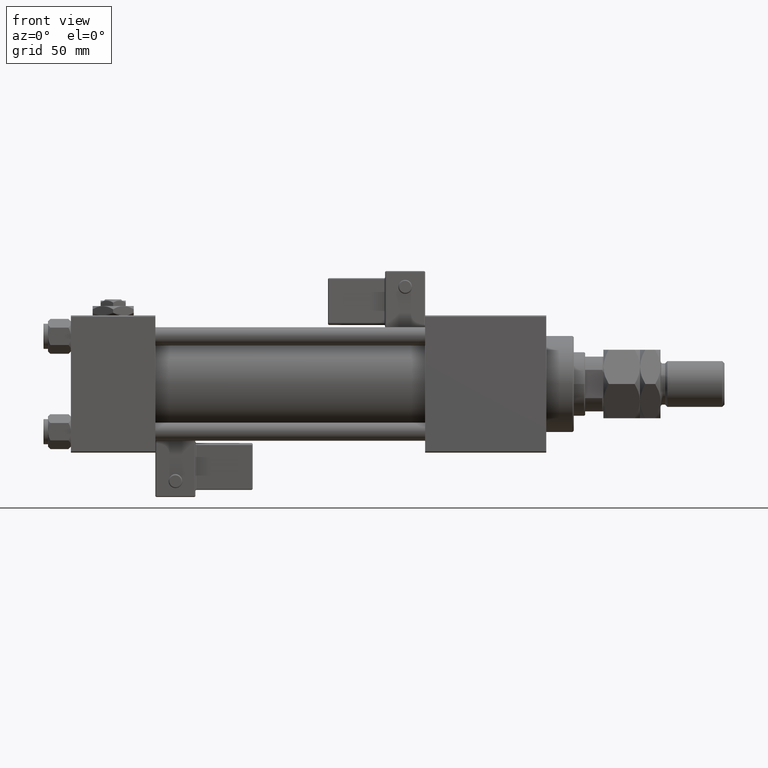
[diagram: clean part render]
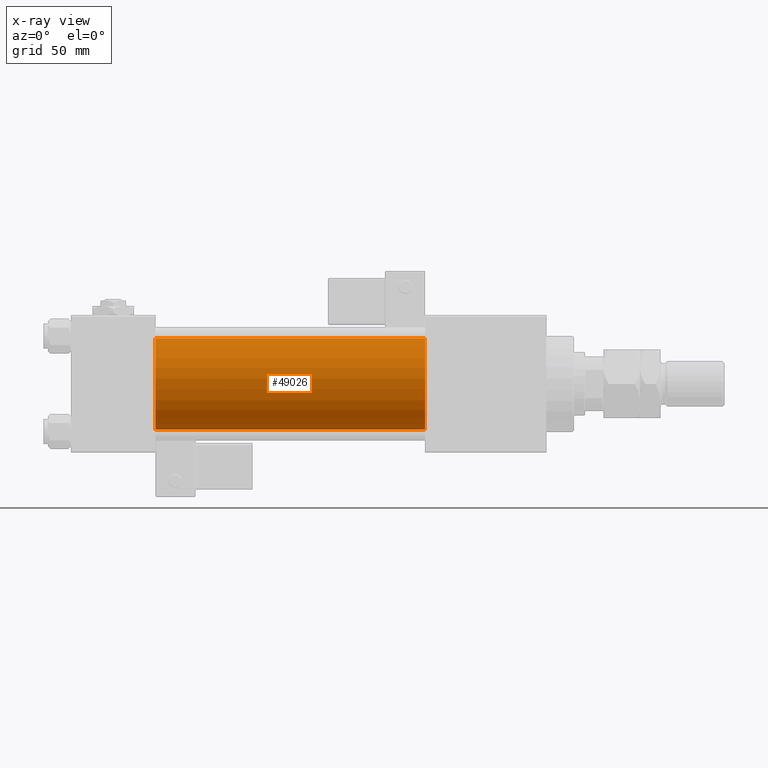
[diagram: x-ray — body ghosted, one internal face saturated and labeled with its STEP entity id]
A machine part, front view, then the same camera in x-ray: the body is ghosted and one INTERNAL B-rep face — a face not visible from any outside direction — is saturated and labeled: STEP entity #49026.
In plain terms, the highlighted cylindrical surface (partial cylindrical patch) has radius 20 mm, axis along (-1, -0, -0).
Its self-contained STEP definition (entity closure, byte-faithful):
#3973 = ORIENTED_EDGE ( 'NONE', *, *, #10460, .F. ) ;
#4211 = CARTESIAN_POINT ( 'NONE',  ( 155.0000000000000000, -1.527916156705042519E-16, -20.00000000000000000 ) ) ;
#4496 = EDGE_CURVE ( 'NONE', #8656, #53914, #21766, .T. ) ;
#5096 = DIRECTION ( 'NONE',  ( 1.000000000000000000, 0.000000000000000000, 0.000000000000000000 ) ) ;
#5959 = AXIS2_PLACEMENT_3D ( 'NONE', #27608, #27320, #27894 ) ;
#8656 = VERTEX_POINT ( 'NONE', #12924 ) ;
#9323 = CARTESIAN_POINT ( 'NONE',  ( 155.0000000000000000, -2.602085213965210642E-15, 0.000000000000000000 ) ) ;
#9373 = VERTEX_POINT ( 'NONE', #4211 ) ;
#10145 = VECTOR ( 'NONE', #35026, 1000.000000000000000 ) ;
#10460 = EDGE_CURVE ( 'NONE', #32672, #8656, #25264, .T. ) ;
#10682 = CIRCLE ( 'NONE', #43148, 20.00000000000000000 ) ;
#12534 = CARTESIAN_POINT ( 'NONE',  ( 155.0000000000000000, -2.602085213965210642E-15, 20.00000000000000000 ) ) ;
#12924 = CARTESIAN_POINT ( 'NONE',  ( 37.00000000000000000, -2.602085213965210642E-15, 20.00000000000000000 ) ) ;
#13202 = DIRECTION ( 'NONE',  ( 0.000000000000000000, 0.000000000000000000, -1.000000000000000000 ) ) ;
#14360 = ORIENTED_EDGE ( 'NONE', *, *, #4496, .F. ) ;
#14892 = FACE_OUTER_BOUND ( 'NONE', #16706, .T. ) ;
#16706 = EDGE_LOOP ( 'NONE', ( #44277, #48527, #14360, #3973 ) ) ;
#17807 = LINE ( 'NONE', #34754, #10145 ) ;
#20885 = AXIS2_PLACEMENT_3D ( 'NONE', #39729, #48192, #13202 ) ;
#21766 = CIRCLE ( 'NONE', #20885, 20.00000000000000000 ) ;
#25264 = LINE ( 'NONE', #12534, #54457 ) ;
#27320 = DIRECTION ( 'NONE',  ( -1.000000000000000000, -0.000000000000000000, -0.000000000000000000 ) ) ;
#27472 = EDGE_CURVE ( 'NONE', #9373, #53914, #17807, .T. ) ;
#27608 = CARTESIAN_POINT ( 'NONE',  ( 155.0000000000000000, -2.602085213965210642E-15, 0.000000000000000000 ) ) ;
#27894 = DIRECTION ( 'NONE',  ( 0.000000000000000000, 0.000000000000000000, 1.000000000000000000 ) ) ;
#29770 = DIRECTION ( 'NONE',  ( -1.000000000000000000, -0.000000000000000000, -0.000000000000000000 ) ) ;
#32672 = VERTEX_POINT ( 'NONE', #50758 ) ;
#34457 = DIRECTION ( 'NONE',  ( 0.000000000000000000, 0.000000000000000000, -1.000000000000000000 ) ) ;
#34754 = CARTESIAN_POINT ( 'NONE',  ( 155.0000000000000000, -1.527916156705042519E-16, -20.00000000000000000 ) ) ;
#35026 = DIRECTION ( 'NONE',  ( -1.000000000000000000, -0.000000000000000000, -0.000000000000000000 ) ) ;
#39729 = CARTESIAN_POINT ( 'NONE',  ( 37.00000000000000000, -2.602085213965210642E-15, 0.000000000000000000 ) ) ;
#43148 = AXIS2_PLACEMENT_3D ( 'NONE', #9323, #5096, #34457 ) ;
#44277 = ORIENTED_EDGE ( 'NONE', *, *, #54610, .T. ) ;
#48192 = DIRECTION ( 'NONE',  ( 1.000000000000000000, 0.000000000000000000, 0.000000000000000000 ) ) ;
#48527 = ORIENTED_EDGE ( 'NONE', *, *, #27472, .T. ) ;
#49026 = ADVANCED_FACE ( 'NONE', ( #14892 ), #54091, .F. ) ;
#50758 = CARTESIAN_POINT ( 'NONE',  ( 155.0000000000000000, -2.602085213965210642E-15, 20.00000000000000000 ) ) ;
#53914 = VERTEX_POINT ( 'NONE', #55380 ) ;
#54091 = CYLINDRICAL_SURFACE ( 'NONE', #5959, 20.00000000000000000 ) ;
#54457 = VECTOR ( 'NONE', #29770, 1000.000000000000000 ) ;
#54610 = EDGE_CURVE ( 'NONE', #32672, #9373, #10682, .T. ) ;
#55380 = CARTESIAN_POINT ( 'NONE',  ( 37.00000000000000000, -1.527916156705042519E-16, -20.00000000000000000 ) ) ;